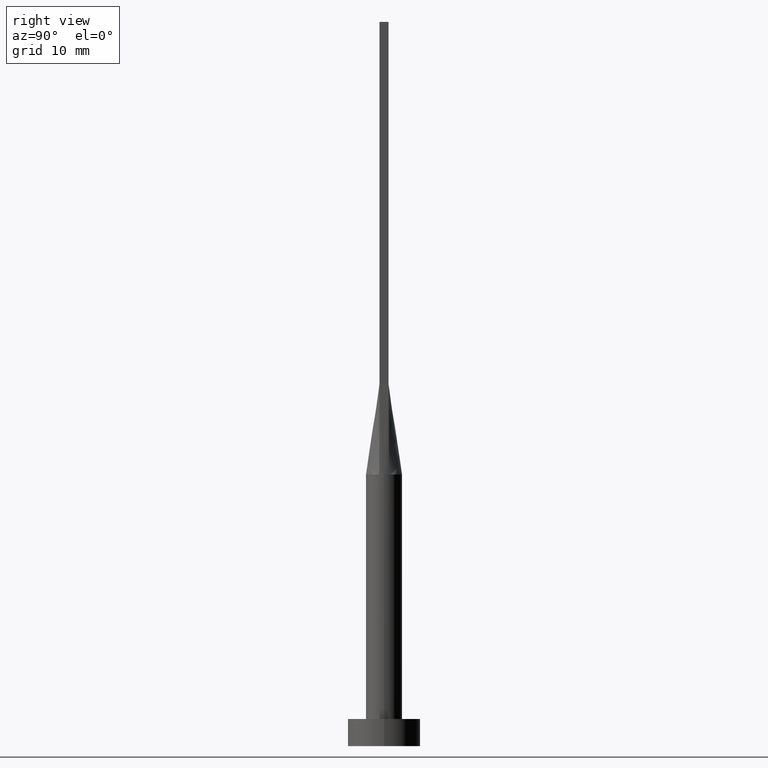
[diagram: clean part render]
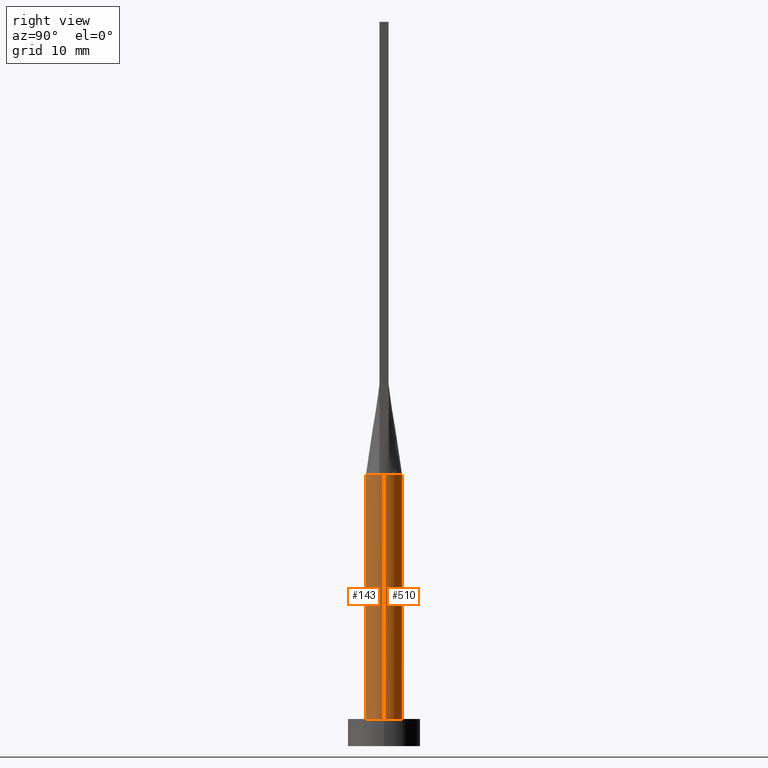
[diagram: same view with one multi-face feature highlighted, each face labeled with its STEP entity id]
A machine part, right view. The highlighted faces form ONE feature: a constant-radius fillet chain: 2 tangent blend faces with common blend radius 2 mm. The faces share edges in the B-rep.
Their STEP definitions:
[1] entity #143 (Cylinder):
#7 = AXIS2_PLACEMENT_3D ( 'NONE', #301, #487, #79 ) ;
#10 = CARTESIAN_POINT ( 'NONE',  ( 0.000000000000000000, 0.000000000000000000, 30.00000000000000000 ) ) ;
#16 = ORIENTED_EDGE ( 'NONE', *, *, #333, .T. ) ;
#41 = AXIS2_PLACEMENT_3D ( 'NONE', #304, #481, #119 ) ;
#42 = DIRECTION ( 'NONE',  ( 0.000000000000000000, 0.000000000000000000, 1.000000000000000000 ) ) ;
#44 = DIRECTION ( 'NONE',  ( 0.000000000000000000, 0.000000000000000000, 1.000000000000000000 ) ) ;
#56 = VERTEX_POINT ( 'NONE', #404 ) ;
#71 = EDGE_CURVE ( 'NONE', #56, #334, #485, .T. ) ;
#72 = ORIENTED_EDGE ( 'NONE', *, *, #353, .F. ) ;
#79 = DIRECTION ( 'NONE',  ( 1.000000000000000000, 0.000000000000000000, 0.000000000000000000 ) ) ;
#84 = CARTESIAN_POINT ( 'NONE',  ( 2.000000000000000000, 2.449293598294706414E-16, 3.000000000000000000 ) ) ;
#119 = DIRECTION ( 'NONE',  ( 1.000000000000000000, 0.000000000000000000, 0.000000000000000000 ) ) ;
#129 = CARTESIAN_POINT ( 'NONE',  ( 2.000000000000000000, 2.449293598294706414E-16, 30.00000000000000000 ) ) ;
#134 = DIRECTION ( 'NONE',  ( -1.000000000000000000, 0.000000000000000000, 0.000000000000000000 ) ) ;
#139 = CYLINDRICAL_SURFACE ( 'NONE', #461, 2.000000000000000000 ) ;
#143 = ADVANCED_FACE ( 'NONE', ( #496 ), #139, .T. ) ;
#177 = CARTESIAN_POINT ( 'NONE',  ( -2.000000000000000000, 0.000000000000000000, 30.00000000000000000 ) ) ;
#179 = CIRCLE ( 'NONE', #195, 2.000000000000000000 ) ;
#180 = CARTESIAN_POINT ( 'NONE',  ( -2.000000000000000000, 8.710755549421510381E-17, 30.00000000000000000 ) ) ;
#189 = DIRECTION ( 'NONE',  ( 1.000000000000000000, 3.552713678800500929E-15, 0.000000000000000000 ) ) ;
#195 = AXIS2_PLACEMENT_3D ( 'NONE', #10, #42, #189 ) ;
#196 = CIRCLE ( 'NONE', #457, 2.000000000000000000 ) ;
#226 = CIRCLE ( 'NONE', #7, 2.000000000000000000 ) ;
#229 = DIRECTION ( 'NONE',  ( 1.000000000000000000, 0.000000000000000000, 0.000000000000000000 ) ) ;
#234 = DIRECTION ( 'NONE',  ( -0.000000000000000000, -0.000000000000000000, -1.000000000000000000 ) ) ;
#247 = ORIENTED_EDGE ( 'NONE', *, *, #392, .T. ) ;
#275 = CARTESIAN_POINT ( 'NONE',  ( 0.000000000000000000, 0.000000000000000000, 30.00000000000000000 ) ) ;
#285 = EDGE_LOOP ( 'NONE', ( #565, #433, #376, #72, #247, #16 ) ) ;
#301 = CARTESIAN_POINT ( 'NONE',  ( 0.000000000000000000, 0.000000000000000000, 30.00000000000000000 ) ) ;
#304 = CARTESIAN_POINT ( 'NONE',  ( 0.000000000000000000, 0.000000000000000000, 3.000000000000000000 ) ) ;
#305 = DIRECTION ( 'NONE',  ( -0.000000000000000000, -0.000000000000000000, -1.000000000000000000 ) ) ;
#322 = VERTEX_POINT ( 'NONE', #180 ) ;
#327 = VERTEX_POINT ( 'NONE', #575 ) ;
#333 = EDGE_CURVE ( 'NONE', #327, #334, #476, .T. ) ;
#334 = VERTEX_POINT ( 'NONE', #84 ) ;
#353 = EDGE_CURVE ( 'NONE', #322, #519, #226, .T. ) ;
#355 = DIRECTION ( 'NONE',  ( -0.000000000000000000, -0.000000000000000000, -1.000000000000000000 ) ) ;
#367 = CARTESIAN_POINT ( 'NONE',  ( 1.923186205402444449, -0.5494823831763672173, 30.00000000000000000 ) ) ;
#376 = ORIENTED_EDGE ( 'NONE', *, *, #557, .F. ) ;
#392 = EDGE_CURVE ( 'NONE', #322, #327, #577, .T. ) ;
#404 = CARTESIAN_POINT ( 'NONE',  ( 2.000000000000000000, 2.759698982225367658E-17, 30.00000000000000000 ) ) ;
#433 = ORIENTED_EDGE ( 'NONE', *, *, #520, .F. ) ;
#445 = VECTOR ( 'NONE', #305, 1000.000000000000000 ) ;
#448 = CARTESIAN_POINT ( 'NONE',  ( 0.000000000000000000, 0.000000000000000000, 30.00000000000000000 ) ) ;
#457 = AXIS2_PLACEMENT_3D ( 'NONE', #448, #44, #229 ) ;
#461 = AXIS2_PLACEMENT_3D ( 'NONE', #275, #234, #134 ) ;
#474 = VERTEX_POINT ( 'NONE', #367 ) ;
#476 = CIRCLE ( 'NONE', #41, 2.000000000000000000 ) ;
#481 = DIRECTION ( 'NONE',  ( 0.000000000000000000, 0.000000000000000000, 1.000000000000000000 ) ) ;
#485 = LINE ( 'NONE', #129, #445 ) ;
#487 = DIRECTION ( 'NONE',  ( 0.000000000000000000, 0.000000000000000000, 1.000000000000000000 ) ) ;
#496 = FACE_OUTER_BOUND ( 'NONE', #285, .T. ) ;
#519 = VERTEX_POINT ( 'NONE', #556 ) ;
#520 = EDGE_CURVE ( 'NONE', #474, #56, #179, .T. ) ;
#524 = VECTOR ( 'NONE', #355, 1000.000000000000000 ) ;
#556 = CARTESIAN_POINT ( 'NONE',  ( -1.923161340940673369, -0.5494751859438878894, 30.00000000000000000 ) ) ;
#557 = EDGE_CURVE ( 'NONE', #519, #474, #196, .T. ) ;
#565 = ORIENTED_EDGE ( 'NONE', *, *, #71, .F. ) ;
#575 = CARTESIAN_POINT ( 'NONE',  ( -2.000000000000000000, 0.000000000000000000, 3.000000000000000000 ) ) ;
#577 = LINE ( 'NONE', #177, #524 ) ;
[2] entity #510 (Cylinder):
#3 = FACE_OUTER_BOUND ( 'NONE', #441, .T. ) ;
#6 = CARTESIAN_POINT ( 'NONE',  ( 0.9545234919502409987, 1.774214358793529955, 30.00000000000000355 ) ) ;
#32 = AXIS2_PLACEMENT_3D ( 'NONE', #503, #359, #541 ) ;
#40 = ORIENTED_EDGE ( 'NONE', *, *, #553, .F. ) ;
#47 = CARTESIAN_POINT ( 'NONE',  ( 0.5022746254375803909, 1.951069421695587947, 29.99999999999999645 ) ) ;
#56 = VERTEX_POINT ( 'NONE', #404 ) ;
#67 = CARTESIAN_POINT ( 'NONE',  ( 1.923154993136894975, 0.5494733089275741778, 30.00000000000000000 ) ) ;
#71 = EDGE_CURVE ( 'NONE', #56, #334, #485, .T. ) ;
#82 = CARTESIAN_POINT ( 'NONE',  ( 1.923154993136894975, 0.5494733089275741778, 30.00000000000000000 ) ) ;
#84 = CARTESIAN_POINT ( 'NONE',  ( 2.000000000000000000, 2.449293598294706414E-16, 3.000000000000000000 ) ) ;
#92 = CARTESIAN_POINT ( 'NONE',  ( -0.5022746254375797248, 1.951069421695588169, 29.99999999999999645 ) ) ;
#95 = DIRECTION ( 'NONE',  ( 0.000000000000000000, 0.000000000000000000, 1.000000000000000000 ) ) ;
#129 = CARTESIAN_POINT ( 'NONE',  ( 2.000000000000000000, 2.449293598294706414E-16, 30.00000000000000000 ) ) ;
#130 = CARTESIAN_POINT ( 'NONE',  ( 1.616149014776643522, 1.193458220519943103, 30.00000000000000000 ) ) ;
#131 = VERTEX_POINT ( 'NONE', #144 ) ;
#133 = CARTESIAN_POINT ( 'NONE',  ( -1.486037034853319616, 1.356520562679218056, 30.00000000000000355 ) ) ;
#144 = CARTESIAN_POINT ( 'NONE',  ( -1.923179810488875541, 0.5494804890868837388, 30.00000000000000000 ) ) ;
#154 = ORIENTED_EDGE ( 'NONE', *, *, #421, .F. ) ;
#177 = CARTESIAN_POINT ( 'NONE',  ( -2.000000000000000000, 0.000000000000000000, 30.00000000000000000 ) ) ;
#180 = CARTESIAN_POINT ( 'NONE',  ( -2.000000000000000000, 8.710755549421510381E-17, 30.00000000000000000 ) ) ;
#185 = CARTESIAN_POINT ( 'NONE',  ( -1.812374357931688884, 0.8669367617086288780, 30.00000000000001066 ) ) ;
#187 = CARTESIAN_POINT ( 'NONE',  ( -1.616149014776643966, 1.193458220519943103, 30.00000000000000711 ) ) ;
#199 = CARTESIAN_POINT ( 'NONE',  ( -1.155438169178558017, 1.647245198242353936, 30.00000000000000711 ) ) ;
#221 = ORIENTED_EDGE ( 'NONE', *, *, #432, .F. ) ;
#236 = DIRECTION ( 'NONE',  ( 0.000000000000000000, 0.000000000000000000, 1.000000000000000000 ) ) ;
#243 = ORIENTED_EDGE ( 'NONE', *, *, #392, .F. ) ;
#266 = VERTEX_POINT ( 'NONE', #67 ) ;
#272 = CARTESIAN_POINT ( 'NONE',  ( 1.486037034853319616, 1.356520562679217834, 29.99999999999999289 ) ) ;
#274 = DIRECTION ( 'NONE',  ( 1.000000000000000000, 0.000000000000000000, 0.000000000000000000 ) ) ;
#283 = B_SPLINE_CURVE_WITH_KNOTS ( 'NONE', 3,
 ( #82, #442, #538, #130, #272, #451, #6, #47, #415, #548, #92, #514, #199, #133, #187, #185, #309, #501 ),
 .UNSPECIFIED., .F., .F.,
 ( 4, 2, 2, 2, 2, 2, 2, 2, 4 ),
 ( 0.000000000000000000, 0.1249999999999999722, 0.2500000000000000000, 0.3750000000000000000, 0.5000000000000001110, 0.6250000000000001110, 0.7500000000000000000, 0.8750000000000000000, 1.000000000000000000 ),
 .UNSPECIFIED. ) ;
#305 = DIRECTION ( 'NONE',  ( -0.000000000000000000, -0.000000000000000000, -1.000000000000000000 ) ) ;
#309 = CARTESIAN_POINT ( 'NONE',  ( -1.879022738048941710, 0.7035303061092221810, 30.00000000000000000 ) ) ;
#314 = CARTESIAN_POINT ( 'NONE',  ( 0.000000000000000000, 0.000000000000000000, 3.000000000000000000 ) ) ;
#320 = CIRCLE ( 'NONE', #32, 2.000000000000000000 ) ;
#322 = VERTEX_POINT ( 'NONE', #180 ) ;
#327 = VERTEX_POINT ( 'NONE', #575 ) ;
#329 = CIRCLE ( 'NONE', #343, 2.000000000000000000 ) ;
#334 = VERTEX_POINT ( 'NONE', #84 ) ;
#343 = AXIS2_PLACEMENT_3D ( 'NONE', #543, #95, #363 ) ;
#346 = ORIENTED_EDGE ( 'NONE', *, *, #71, .T. ) ;
#355 = DIRECTION ( 'NONE',  ( -0.000000000000000000, -0.000000000000000000, -1.000000000000000000 ) ) ;
#359 = DIRECTION ( 'NONE',  ( 0.000000000000000000, 0.000000000000000000, 1.000000000000000000 ) ) ;
#363 = DIRECTION ( 'NONE',  ( 1.000000000000000000, 0.000000000000000000, 0.000000000000000000 ) ) ;
#392 = EDGE_CURVE ( 'NONE', #322, #327, #577, .T. ) ;
#394 = AXIS2_PLACEMENT_3D ( 'NONE', #314, #236, #274 ) ;
#404 = CARTESIAN_POINT ( 'NONE',  ( 2.000000000000000000, 2.759698982225367658E-17, 30.00000000000000000 ) ) ;
#406 = CYLINDRICAL_SURFACE ( 'NONE', #477, 2.000000000000000000 ) ;
#412 = DIRECTION ( 'NONE',  ( -1.000000000000000000, 0.000000000000000000, 0.000000000000000000 ) ) ;
#415 = CARTESIAN_POINT ( 'NONE',  ( 0.2514338042514535632, 1.999999999999999556, 30.00000000000000355 ) ) ;
#421 = EDGE_CURVE ( 'NONE', #266, #131, #283, .T. ) ;
#432 = EDGE_CURVE ( 'NONE', #131, #322, #329, .T. ) ;
#441 = EDGE_LOOP ( 'NONE', ( #40, #346, #534, #243, #221, #154 ) ) ;
#442 = CARTESIAN_POINT ( 'NONE',  ( 1.879022738048942154, 0.7035303061092218480, 30.00000000000000355 ) ) ;
#445 = VECTOR ( 'NONE', #305, 1000.000000000000000 ) ;
#446 = CARTESIAN_POINT ( 'NONE',  ( 0.000000000000000000, 0.000000000000000000, 30.00000000000000000 ) ) ;
#451 = CARTESIAN_POINT ( 'NONE',  ( 1.155438169178558461, 1.647245198242353714, 29.99999999999999645 ) ) ;
#453 = DIRECTION ( 'NONE',  ( -0.000000000000000000, -0.000000000000000000, -1.000000000000000000 ) ) ;
#454 = CIRCLE ( 'NONE', #394, 2.000000000000000000 ) ;
#477 = AXIS2_PLACEMENT_3D ( 'NONE', #446, #453, #412 ) ;
#485 = LINE ( 'NONE', #129, #445 ) ;
#501 = CARTESIAN_POINT ( 'NONE',  ( -1.923179810488875541, 0.5494804890868837388, 30.00000000000000000 ) ) ;
#503 = CARTESIAN_POINT ( 'NONE',  ( 0.000000000000000000, 0.000000000000000000, 30.00000000000000000 ) ) ;
#508 = EDGE_CURVE ( 'NONE', #334, #327, #454, .T. ) ;
#510 = ADVANCED_FACE ( 'NONE', ( #3 ), #406, .T. ) ;
#514 = CARTESIAN_POINT ( 'NONE',  ( -0.9545234919502401105, 1.774214358793530177, 30.00000000000000355 ) ) ;
#524 = VECTOR ( 'NONE', #355, 1000.000000000000000 ) ;
#534 = ORIENTED_EDGE ( 'NONE', *, *, #508, .T. ) ;
#538 = CARTESIAN_POINT ( 'NONE',  ( 1.812374357931689328, 0.8669367617086293221, 30.00000000000000355 ) ) ;
#541 = DIRECTION ( 'NONE',  ( 1.000000000000000000, 0.000000000000000000, 0.000000000000000000 ) ) ;
#543 = CARTESIAN_POINT ( 'NONE',  ( 0.000000000000000000, 0.000000000000000000, 30.00000000000000000 ) ) ;
#548 = CARTESIAN_POINT ( 'NONE',  ( -0.2514338042514528415, 1.999999999999999556, 30.00000000000001066 ) ) ;
#553 = EDGE_CURVE ( 'NONE', #56, #266, #320, .T. ) ;
#575 = CARTESIAN_POINT ( 'NONE',  ( -2.000000000000000000, 0.000000000000000000, 3.000000000000000000 ) ) ;
#577 = LINE ( 'NONE', #177, #524 ) ;